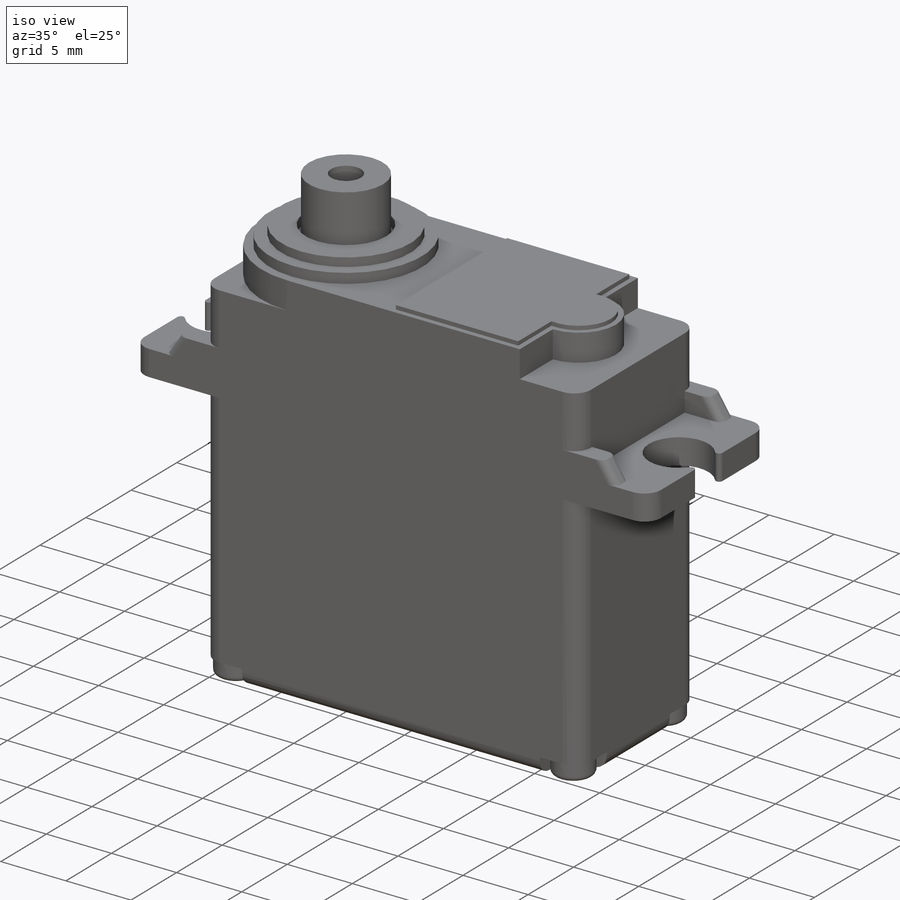
[diagram: iso view]
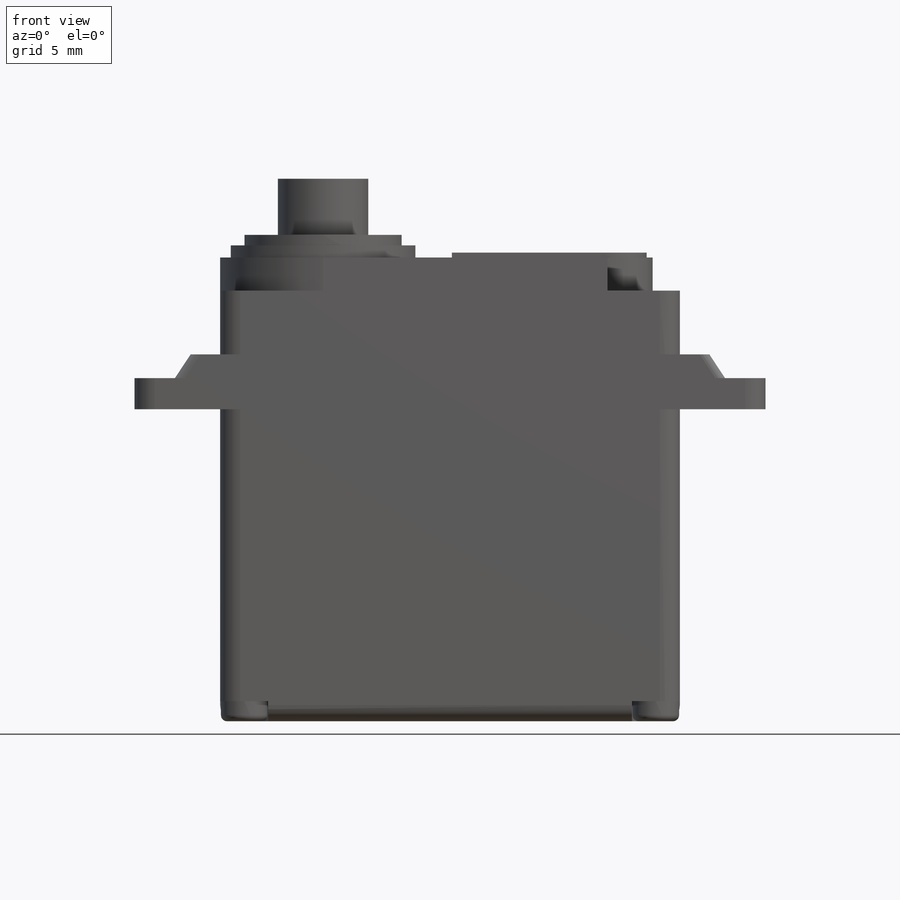
[diagram: front view]
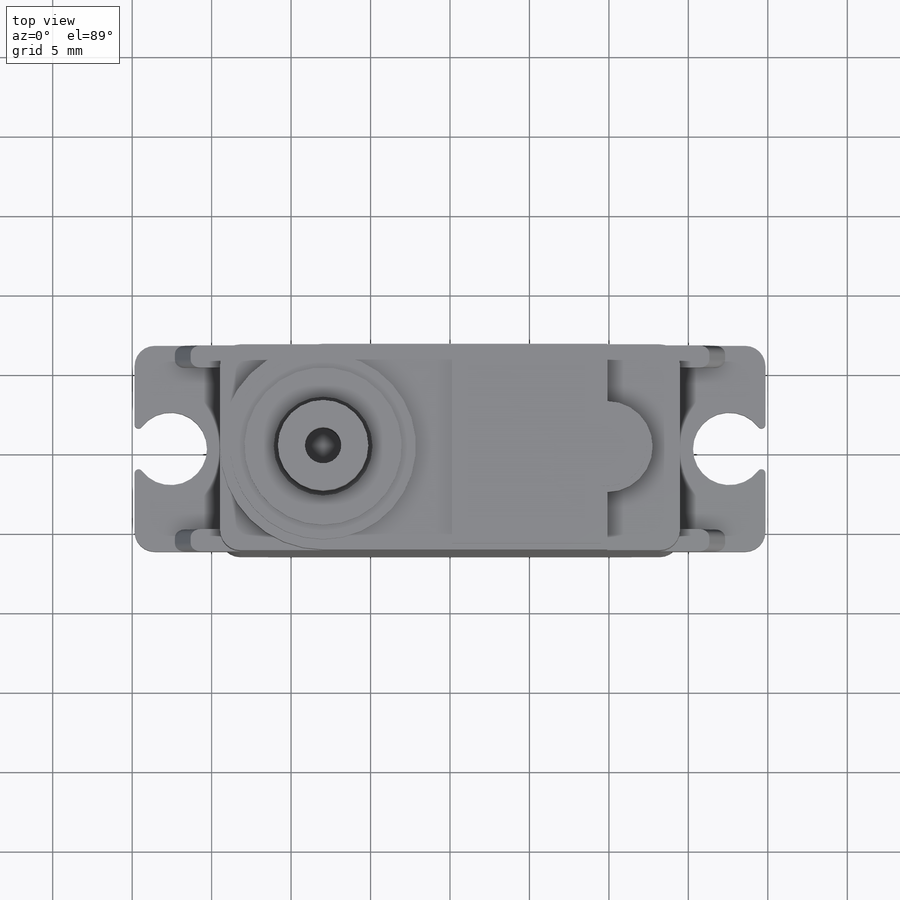
[diagram: top view]
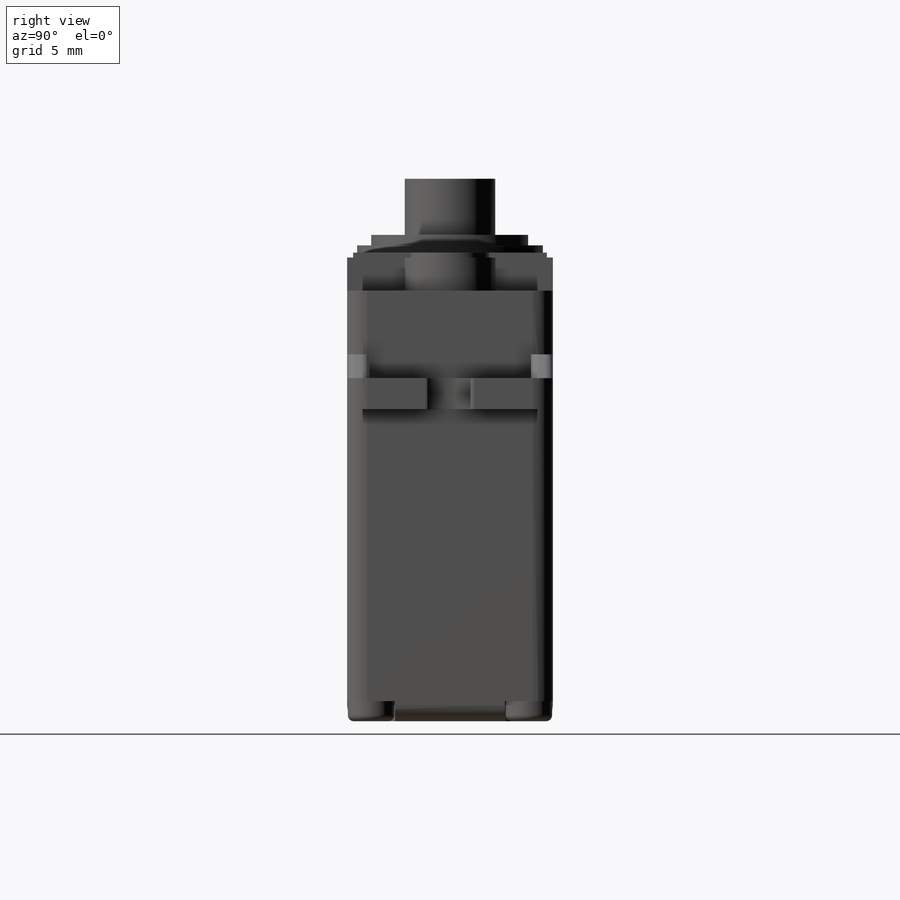
[diagram: right view]
SOLIDWORKS PART (.sldprt)
format: sldprt  version: not decoded by parser v0  size: 707,584 bytes
history: native  units: mm
features: sketch x15, extrude x8, fillet x7, mirror x6, cut_extrude x5, plane x3, material x1, sweep x1 (+16 scaffold rows collapsed)
feature tree (62):
  scaffold x16  (default folders/planes/origin — collapsed)
  material  "Material <not specified>"
  sketch  "Sketch1"  dims[D1=28.9306mm D2=12.954mm]
  extrude  "Extrude1"  Depth=27.1018mm
  plane  "Plane1"  Offset=19.6342mm
  sketch  "Sketch2"  dims[D1=5.3848mm]
  extrude  "Extrude2"  Depth=1.9558mm
  sketch  "Sketch3"  dims[c1.D1=4.572mm c1.D2=15.4178mm c1.D3=0.9525mm c2.D2=17.5768mm]
  cut_extrude  "Extrude3"  [1 undecoded]
  sketch  "Sketch4"  dims[D1=2.54mm D2=1.397mm]
  sketch  "Sketch5"  dims[D1=3.4544mm D2=3.5306mm]
  sweep  "Sweep1"
  fillet  "Fillet1"  Radius=0.508mm
  mirror  "Mirror1"
  fillet  "Fillet2"  Radius=1.27mm
  fillet  "Fillet3"  Radius=0.254mm
  mirror  "Mirror2"
  sketch  "Sketch6"  dims[D1=4.572mm D2=5.715mm]
  extrude  "Extrude4"  Depth=2.0828mm
  sketch  "Sketch7"  dims[D2=9.398mm D1=0.381mm]
  extrude  "Extrude5"  Depth=0.3048mm
  sketch  "Sketch8"  dims[D1=11.684mm]
  extrude  "Extrude6"  Depth=0.762mm
  plane  "Plane2"  Offset=30.607mm
  sketch  "Sketch10"  dims[D1=9.906mm]
  extrude  "Extrude7"  [1 undecoded]
  plane  "Plane3"  Offset=34.1376mm
  sketch  "Sketch11"  dims[D1=6.223mm]
  cut_extrude  "Extrude8"  Depth=0.762mm
  sketch  "Sketch12"  dims[D1=5.6896mm]
  extrude  "Extrude9"  [1 undecoded]
  sketch  "Sketch13"  dims[D1=2.286mm]
  cut_extrude  "Extrude10"  [1 undecoded]
  fillet  "Fillet4"  Radius=1.27mm
  sketch  "Sketch14"  dims[D1=3.0226mm]
  cut_extrude  "Extrude11"  Depth=1.27mm
  fillet  "Fillet5"  Radius=1.27mm
  mirror  "Mirror3"
  mirror  "Mirror4"
  fillet  "Fillet6"  Radius=1.016mm
  sketch  "Sketch15"  dims[D1=2.921mm]
  extrude  "Extrude12"  [1 undecoded]
  fillet  "Fillet7"  Radius=0.381mm
  sketch  "Sketch16"  dims[D1=0.508mm D2=1.5748mm]
  cut_extrude  "Extrude13"  Depth=0.508mm
  mirror  "Mirror5"
  mirror  "Mirror6"
decode coverage: 30 of 42 modeling features carry decoded parameters
note: 5 parameter values undecoded
summary: no parameter record found for 5 features
note: suppression state not decoded; provenance and decode notes live in map.json
